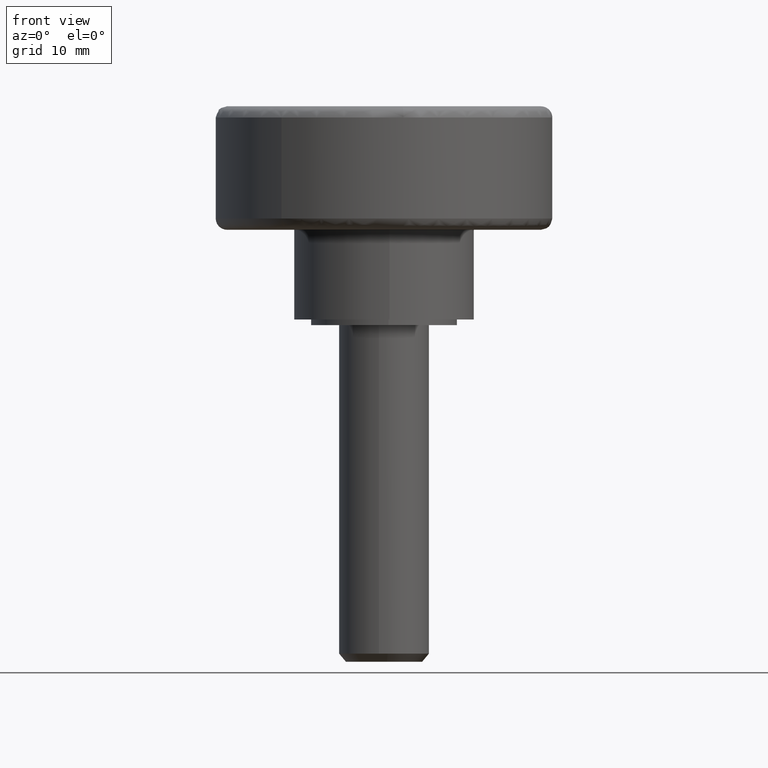
[diagram: clean part render]
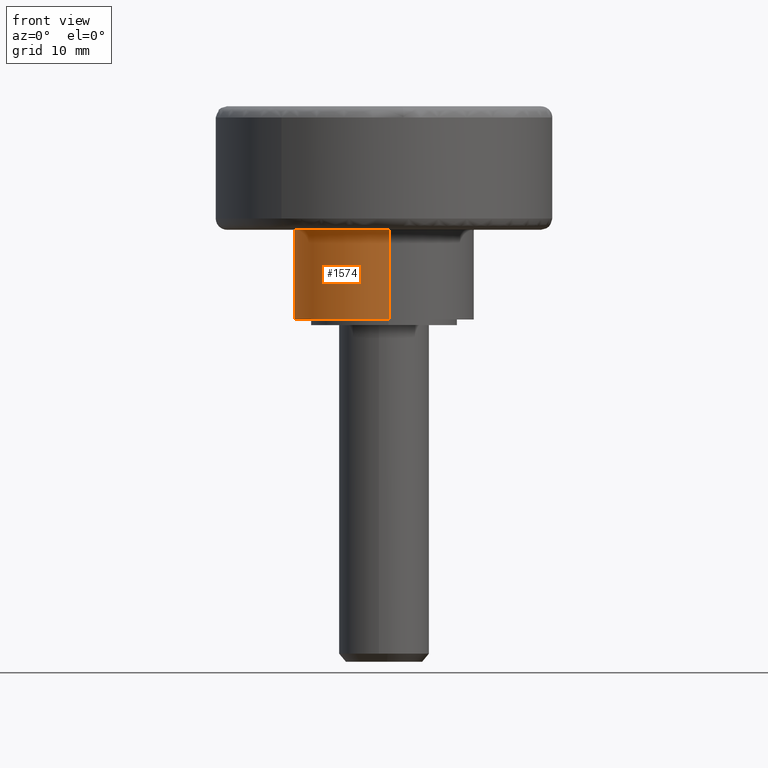
[diagram: same view with one face highlighted and labeled with its STEP entity id]
A machine part, front view. The second image highlights one B-rep face of the part: STEP entity #1574.
In plain terms, the highlighted face is a freeform B-spline surface patch.
Its self-contained STEP definition (entity closure, byte-faithful):
#1411=CARTESIAN_POINT('',(-0.944263204618306,7.944077479499331,0.500000000000094));
#1412=VERTEX_POINT('',#1411);
#1430=CARTESIAN_POINT('',(-0.944263336194307,7.944077463859884,8.500000000000000));
#1431=VERTEX_POINT('',#1430);
#1432=CARTESIAN_POINT('',(-0.944263336194307,7.944077463859884,8.500000000000000));
#1433=CARTESIAN_POINT('',(-0.944263204618306,7.944077479499331,0.500000000000094));
#1434=QUASI_UNIFORM_CURVE('',1,(#1432,#1433),.UNSPECIFIED.,.F.,.U.);
#1435=EDGE_CURVE('',#1431,#1412,#1434,.T.);
#1454=CARTESIAN_POINT('',(0.488383445494878,-7.985078685281863,8.500000000000000));
#1455=VERTEX_POINT('',#1454);
#1469=CARTESIAN_POINT('',(0.488383384562229,-7.985078689008589,0.499999999999972));
#1470=VERTEX_POINT('',#1469);
#1471=CARTESIAN_POINT('',(0.488383445494878,-7.985078685281863,8.500000000000000));
#1472=CARTESIAN_POINT('',(0.488383384562229,-7.985078689008589,0.499999999999972));
#1473=QUASI_UNIFORM_CURVE('',1,(#1471,#1472),.UNSPECIFIED.,.F.,.U.);
#1474=EDGE_CURVE('',#1455,#1470,#1473,.T.);
#1492=CARTESIAN_POINT('',(0.488388316278856,-7.985078387374934,8.699999999999999));
#1493=CARTESIAN_POINT('',(-7.496690071096078,-8.473466703653790,8.699999999999999));
#1494=CARTESIAN_POINT('',(-7.985078387374934,-0.488388316278856,8.699999999999999));
#1495=CARTESIAN_POINT('',(-8.446289573860220,7.052347926716008,8.699999999999999));
#1496=CARTESIAN_POINT('',(-0.944273877254068,7.944076210909330,8.700000000000001));
#1497=CARTESIAN_POINT('',(0.488388316278856,-7.985078387374934,0.295000000000000));
#1498=CARTESIAN_POINT('',(-7.496690071096078,-8.473466703653790,0.295000000000000));
#1499=CARTESIAN_POINT('',(-7.985078387374934,-0.488388316278856,0.295000000000000));
#1500=CARTESIAN_POINT('',(-8.446289573860220,7.052347926716008,0.295000000000000));
#1501=CARTESIAN_POINT('',(-0.944273877254068,7.944076210909330,0.295000000000000));
#1509=(BOUNDED_SURFACE()B_SPLINE_SURFACE(2,1,((#1492,#1497),(#1493,#1498),(#1494,#1499),(#1495,#1500),(#1496,#1501)),.UNSPECIFIED.,.F.,.F.,.U.)B_SPLINE_SURFACE_WITH_KNOTS((3,2,3),(2,2),(0.0,13.254833995939039,25.979474632040510),(0.0,8.405000000000001),.UNSPECIFIED.)GEOMETRIC_REPRESENTATION_ITEM()RATIONAL_B_SPLINE_SURFACE(((1.0,1.0),(0.707106781186548,0.707106781186548),(1.0,1.0),(0.718822509939086,0.718822509939086),(0.977505800795127,0.977505800795127)))REPRESENTATION_ITEM('')SURFACE());
#1510=CARTESIAN_POINT('',(-8.0,0.0,0.500000000000000));
#1511=VERTEX_POINT('',#1510);
#1512=CARTESIAN_POINT('',(-8.0,0.0,0.500000000000000));
#1513=CARTESIAN_POINT('',(-8.0,7.105405820708744,0.500000000000000));
#1514=CARTESIAN_POINT('',(-0.944263204618306,7.944077479499331,0.500000000000094));
#1522=(BOUNDED_CURVE()B_SPLINE_CURVE(2,(#1512,#1513,#1514),.UNSPECIFIED.,.F.,.U.)B_SPLINE_CURVE_WITH_KNOTS((3,3),(0.0,0.229562700566621),.UNSPECIFIED.)CURVE()GEOMETRIC_REPRESENTATION_ITEM()RATIONAL_B_SPLINE_CURVE((1.0,0.731050566846134,0.956027199217575))REPRESENTATION_ITEM(''));
#1523=EDGE_CURVE('',#1511,#1412,#1522,.T.);
#1524=ORIENTED_EDGE('',*,*,#1523,.F.);
#1525=CARTESIAN_POINT('',(0.488383384562229,-7.985078689008589,0.499999999999972));
#1526=CARTESIAN_POINT('',(0.244419633616488,-8.0,0.500000000000000));
#1527=CARTESIAN_POINT('',(0.0,-8.0,0.500000000000000));
#1528=CARTESIAN_POINT('',(-8.0,-8.0,0.500000000000000));
#1529=CARTESIAN_POINT('',(-8.0,0.0,0.500000000000000));
#1537=(BOUNDED_CURVE()B_SPLINE_CURVE(2,(#1525,#1526,#1527,#1528,#1529),.UNSPECIFIED.,.F.,.U.)B_SPLINE_CURVE_WITH_KNOTS((3,2,3),(0.739333068809731,0.750000000000000,1.0),.UNSPECIFIED.)CURVE()GEOMETRIC_REPRESENTATION_ITEM()RATIONAL_B_SPLINE_CURVE((0.976072270068310,0.987502912755282,1.0,0.707106781186548,1.0))REPRESENTATION_ITEM(''));
#1538=EDGE_CURVE('',#1470,#1511,#1537,.T.);
#1539=ORIENTED_EDGE('',*,*,#1538,.F.);
#1540=ORIENTED_EDGE('',*,*,#1474,.F.);
#1541=CARTESIAN_POINT('',(-8.0,0.0,8.500000000000000));
#1542=VERTEX_POINT('',#1541);
#1543=CARTESIAN_POINT('',(0.488383445494877,-7.985078685281863,8.500000000000000));
#1544=CARTESIAN_POINT('',(0.244419664168233,-8.0,8.500000000000002));
#1545=CARTESIAN_POINT('',(0.0,-8.0,8.500000000000000));
#1546=CARTESIAN_POINT('',(-8.0,-8.0,8.500000000000002));
#1547=CARTESIAN_POINT('',(-8.0,0.0,8.500000000000000));
#1555=(BOUNDED_CURVE()B_SPLINE_CURVE(2,(#1543,#1544,#1545,#1546,#1547),.UNSPECIFIED.,.F.,.U.)B_SPLINE_CURVE_WITH_KNOTS((3,2,3),(0.739333067493058,0.750000000000000,1.0),.UNSPECIFIED.)CURVE()GEOMETRIC_REPRESENTATION_ITEM()RATIONAL_B_SPLINE_CURVE((0.976072267246427,0.987502911212704,1.0,0.707106781186548,1.0))REPRESENTATION_ITEM(''));
#1556=EDGE_CURVE('',#1455,#1542,#1555,.T.);
#1557=ORIENTED_EDGE('',*,*,#1556,.T.);
#1558=CARTESIAN_POINT('',(-8.0,0.0,8.500000000000000));
#1559=CARTESIAN_POINT('',(-8.0,7.105405702195047,8.500000000000000));
#1560=CARTESIAN_POINT('',(-0.944263336194307,7.944077463859884,8.500000000000002));
#1568=(BOUNDED_CURVE()B_SPLINE_CURVE(2,(#1558,#1559,#1560),.UNSPECIFIED.,.F.,.U.)B_SPLINE_CURVE_WITH_KNOTS((3,3),(0.0,0.229562697767457),.UNSPECIFIED.)CURVE()GEOMETRIC_REPRESENTATION_ITEM()RATIONAL_B_SPLINE_CURVE((1.0,0.731050570125559,0.956027193731087))REPRESENTATION_ITEM(''));
#1569=EDGE_CURVE('',#1542,#1431,#1568,.T.);
#1570=ORIENTED_EDGE('',*,*,#1569,.T.);
#1571=ORIENTED_EDGE('',*,*,#1435,.T.);
#1572=EDGE_LOOP('',(#1524,#1539,#1540,#1557,#1570,#1571));
#1573=FACE_OUTER_BOUND('',#1572,.T.);
#1574=ADVANCED_FACE('',(#1573),#1509,.T.);